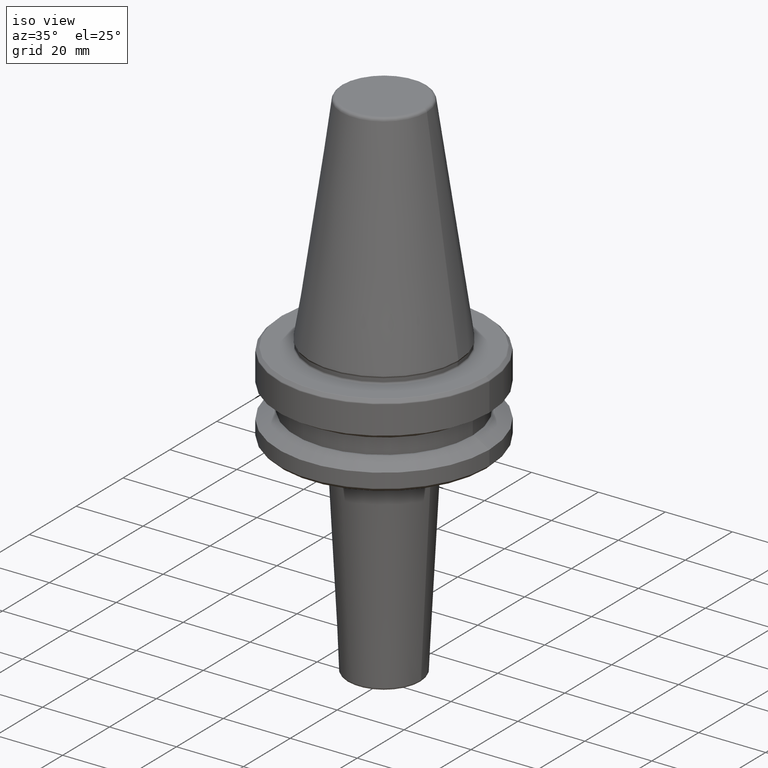
[diagram: clean part render]
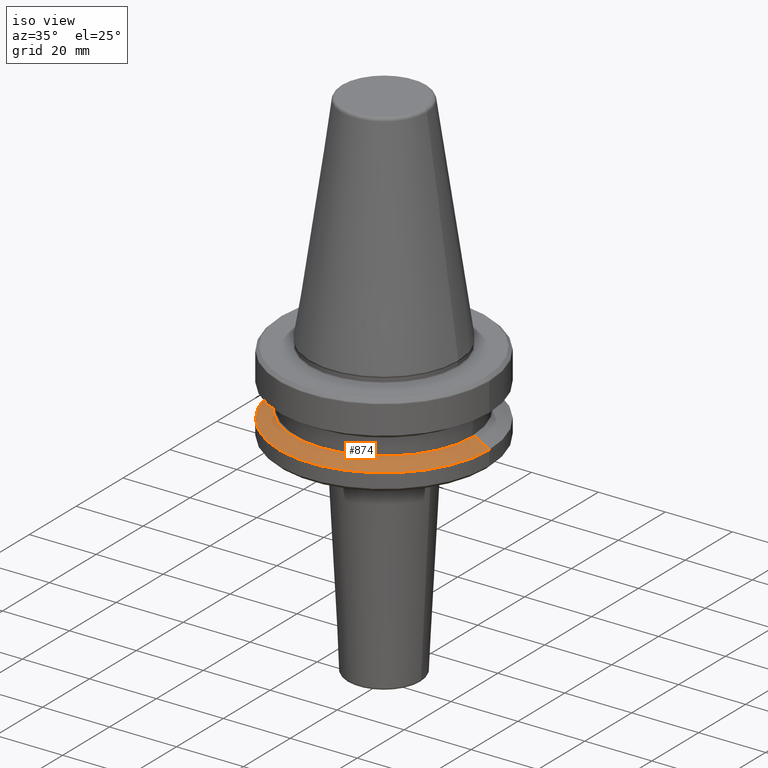
[diagram: same view with one face highlighted and labeled with its STEP entity id]
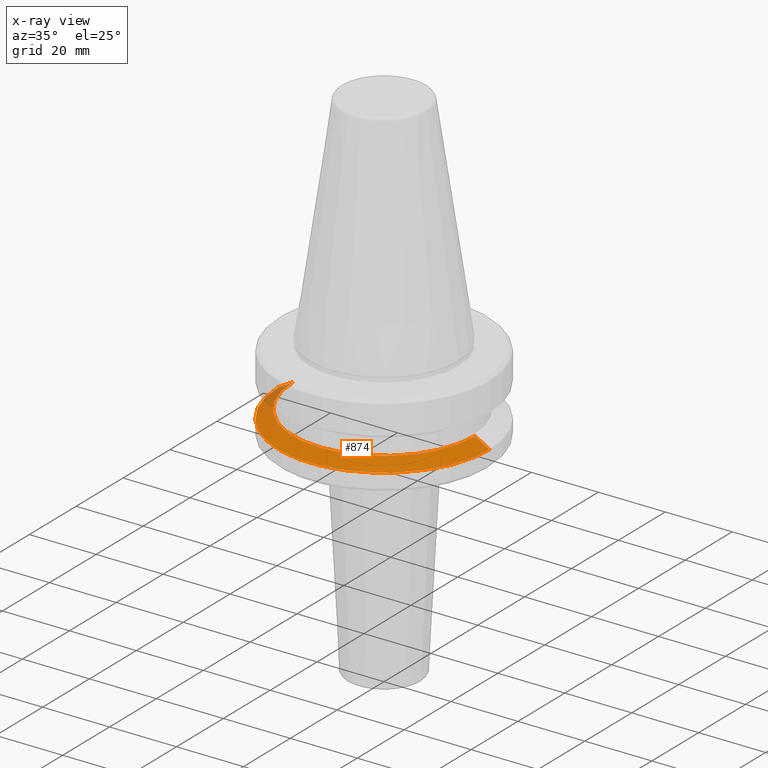
[diagram: x-ray of the same camera — body ghosted, the highlighted face saturated]
A machine part, iso view. The second image highlights one B-rep face of the part: STEP entity #874.
The next image is the same camera in x-ray: the body ghosted, the highlighted face saturated — about 4% of this face is hidden behind the body in this view.
In plain terms, the highlighted conical surface has half-angle 60 deg.
Its self-contained STEP definition (entity closure, byte-faithful):
#97 = DIRECTION ( 'NONE',  ( -0.0000000000000000000, -0.0000000000000000000, -1.000000000000000000 ) ) ;
#147 = EDGE_CURVE ( 'NONE', #483, #608, #712, .T. ) ;
#165 = EDGE_LOOP ( 'NONE', ( #993, #1046, #452, #1072 ) ) ;
#181 = CARTESIAN_POINT ( 'NONE',  ( 0.0000000000000000000, 0.0000000000000000000, -19.09999999999999800 ) ) ;
#191 = EDGE_CURVE ( 'NONE', #451, #476, #577, .T. ) ;
#211 = CARTESIAN_POINT ( 'NONE',  ( -31.50000000000000700, 0.0000000000000000000, -21.59985333118215700 ) ) ;
#255 = DIRECTION ( 'NONE',  ( -1.000000000000000000, 0.0000000000000000000, 0.0000000000000000000 ) ) ;
#287 = VECTOR ( 'NONE', #660, 1000.000000000000000 ) ;
#371 = CONICAL_SURFACE ( 'NONE', #947, 27.17012701892217700, 1.047197551196600500 ) ;
#446 = LINE ( 'NONE', #989, #924 ) ;
#451 = VERTEX_POINT ( 'NONE', #604 ) ;
#452 = ORIENTED_EDGE ( 'NONE', *, *, #773, .T. ) ;
#476 = VERTEX_POINT ( 'NONE', #211 ) ;
#477 = DIRECTION ( 'NONE',  ( -0.0000000000000000000, -0.0000000000000000000, -1.000000000000000000 ) ) ;
#483 = VERTEX_POINT ( 'NONE', #870 ) ;
#554 = AXIS2_PLACEMENT_3D ( 'NONE', #1002, #477, #255 ) ;
#559 = LINE ( 'NONE', #916, #287 ) ;
#577 = CIRCLE ( 'NONE', #785, 31.50000000000000700 ) ;
#604 = CARTESIAN_POINT ( 'NONE',  ( 31.50000000000000700, 3.857637417314163500E-015, -21.59985333118215700 ) ) ;
#608 = VERTEX_POINT ( 'NONE', #629 ) ;
#629 = CARTESIAN_POINT ( 'NONE',  ( -27.17012701892217700, 0.0000000000000000000, -19.09999999999999800 ) ) ;
#660 = DIRECTION ( 'NONE',  ( 0.8660254037844400400, 1.060575238724908600E-016, -0.4999999999999976100 ) ) ;
#712 = CIRCLE ( 'NONE', #554, 27.17012701892217700 ) ;
#738 = DIRECTION ( 'NONE',  ( -1.000000000000000000, 0.0000000000000000000, 0.0000000000000000000 ) ) ;
#773 = EDGE_CURVE ( 'NONE', #608, #476, #446, .T. ) ;
#785 = AXIS2_PLACEMENT_3D ( 'NONE', #961, #97, #738 ) ;
#815 = FACE_OUTER_BOUND ( 'NONE', #165, .T. ) ;
#842 = EDGE_CURVE ( 'NONE', #483, #451, #559, .T. ) ;
#870 = CARTESIAN_POINT ( 'NONE',  ( 27.17012701892217700, 3.592509162964584900E-015, -19.09999999999999800 ) ) ;
#874 = ADVANCED_FACE ( 'NONE', ( #815 ), #371, .T. ) ;
#916 = CARTESIAN_POINT ( 'NONE',  ( 27.17012701892217700, 3.327380908615005900E-015, -19.09999999999999800 ) ) ;
#918 = DIRECTION ( 'NONE',  ( -1.000000000000000000, 0.0000000000000000000, 0.0000000000000000000 ) ) ;
#924 = VECTOR ( 'NONE', #1109, 1000.000000000000000 ) ;
#947 = AXIS2_PLACEMENT_3D ( 'NONE', #181, #1011, #918 ) ;
#961 = CARTESIAN_POINT ( 'NONE',  ( 0.0000000000000000000, 0.0000000000000000000, -21.59985333118215700 ) ) ;
#989 = CARTESIAN_POINT ( 'NONE',  ( -27.17012701892217700, 0.0000000000000000000, -19.09999999999999800 ) ) ;
#993 = ORIENTED_EDGE ( 'NONE', *, *, #842, .F. ) ;
#1002 = CARTESIAN_POINT ( 'NONE',  ( 0.0000000000000000000, 0.0000000000000000000, -19.09999999999999800 ) ) ;
#1011 = DIRECTION ( 'NONE',  ( -0.0000000000000000000, -0.0000000000000000000, -1.000000000000000000 ) ) ;
#1046 = ORIENTED_EDGE ( 'NONE', *, *, #147, .T. ) ;
#1072 = ORIENTED_EDGE ( 'NONE', *, *, #191, .F. ) ;
#1109 = DIRECTION ( 'NONE',  ( -0.8660254037844400400, 0.0000000000000000000, -0.4999999999999976100 ) ) ;